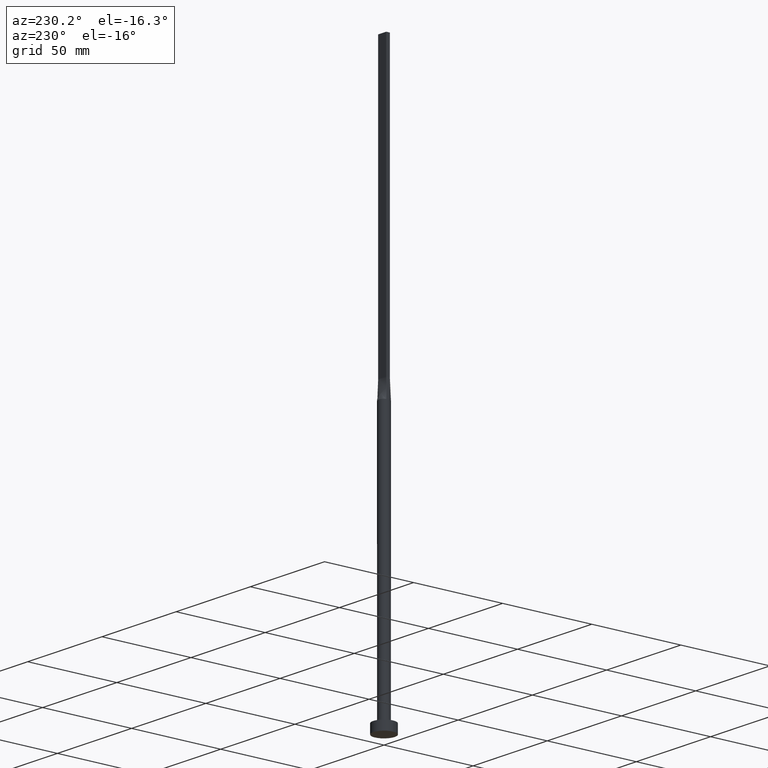
[diagram: clean part render]
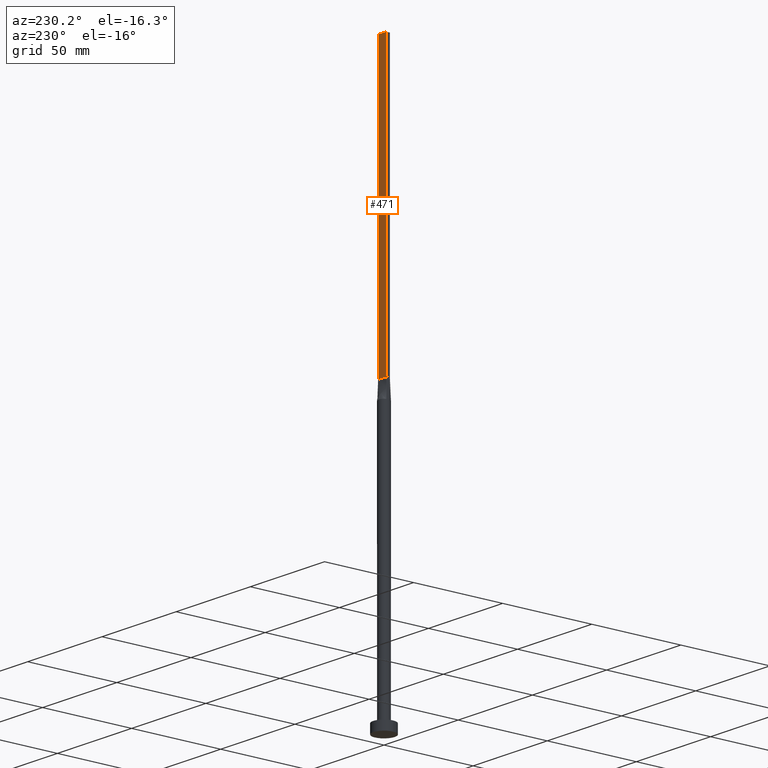
[diagram: same view with one face highlighted and labeled with its STEP entity id]
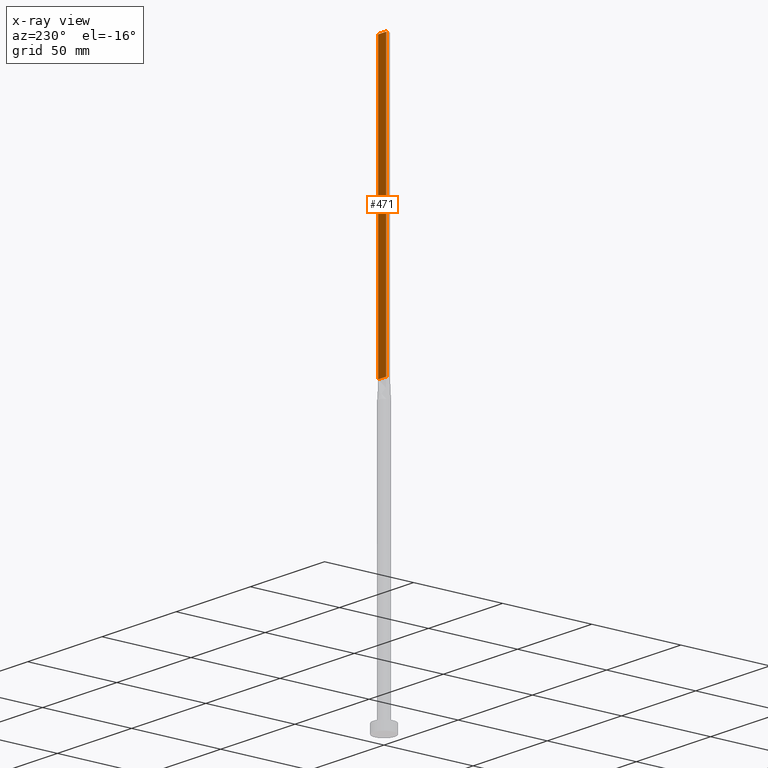
[diagram: x-ray of the same camera — body ghosted, the highlighted face saturated]
A machine part, auxiliary view. The second image highlights one B-rep face of the part: STEP entity #471.
The next image is the same camera in x-ray: the body ghosted, the highlighted face saturated — about 0% of this face is hidden behind the body in this view.
In plain terms, the highlighted planar face has unit normal (0, -1, 0).
Its self-contained STEP definition (entity closure, byte-faithful):
#9 = DIRECTION ( 'NONE',  ( -0.000000000000000000, -0.000000000000000000, -1.000000000000000000 ) ) ;
#18 = LINE ( 'NONE', #75, #393 ) ;
#22 = EDGE_CURVE ( 'NONE', #514, #558, #532, .T. ) ;
#40 = VERTEX_POINT ( 'NONE', #121 ) ;
#42 = FACE_OUTER_BOUND ( 'NONE', #145, .T. ) ;
#61 = LINE ( 'NONE', #384, #74 ) ;
#74 = VECTOR ( 'NONE', #105, 1000.000000000000000 ) ;
#75 = CARTESIAN_POINT ( 'NONE',  ( 2.749999999999999556, 1.000000000000000000, 315.0000000000000000 ) ) ;
#82 = PLANE ( 'NONE',  #369 ) ;
#84 = CARTESIAN_POINT ( 'NONE',  ( -2.749999999999999556, 1.000000000000000000, 315.0000000000000000 ) ) ;
#105 = DIRECTION ( 'NONE',  ( -1.000000000000000000, -0.000000000000000000, -0.000000000000000000 ) ) ;
#121 = CARTESIAN_POINT ( 'NONE',  ( 2.749999999999999556, 1.000000000000000000, 160.0000000000000000 ) ) ;
#127 = CARTESIAN_POINT ( 'NONE',  ( -2.749999999999999556, 1.000000000000000000, 315.0000000000000000 ) ) ;
#145 = EDGE_LOOP ( 'NONE', ( #292, #435, #328, #188 ) ) ;
#174 = LINE ( 'NONE', #459, #519 ) ;
#186 = EDGE_CURVE ( 'NONE', #40, #558, #61, .T. ) ;
#188 = ORIENTED_EDGE ( 'NONE', *, *, #381, .T. ) ;
#215 = CARTESIAN_POINT ( 'NONE',  ( 2.749999999999999556, 1.000000000000000000, 315.0000000000000000 ) ) ;
#216 = VECTOR ( 'NONE', #254, 1000.000000000000000 ) ;
#236 = VERTEX_POINT ( 'NONE', #280 ) ;
#254 = DIRECTION ( 'NONE',  ( -0.000000000000000000, -0.000000000000000000, -1.000000000000000000 ) ) ;
#260 = DIRECTION ( 'NONE',  ( 0.000000000000000000, -1.000000000000000000, 0.000000000000000000 ) ) ;
#280 = CARTESIAN_POINT ( 'NONE',  ( 2.749999999999999556, 1.000000000000000000, 315.0000000000000000 ) ) ;
#292 = ORIENTED_EDGE ( 'NONE', *, *, #186, .T. ) ;
#328 = ORIENTED_EDGE ( 'NONE', *, *, #338, .F. ) ;
#338 = EDGE_CURVE ( 'NONE', #236, #514, #18, .T. ) ;
#369 = AXIS2_PLACEMENT_3D ( 'NONE', #215, #260, #404 ) ;
#377 = DIRECTION ( 'NONE',  ( -1.000000000000000000, 0.000000000000000000, 0.000000000000000000 ) ) ;
#381 = EDGE_CURVE ( 'NONE', #236, #40, #174, .T. ) ;
#384 = CARTESIAN_POINT ( 'NONE',  ( -2.749999999999999556, 1.000000000000000000, 160.0000000000000000 ) ) ;
#393 = VECTOR ( 'NONE', #377, 1000.000000000000000 ) ;
#404 = DIRECTION ( 'NONE',  ( 0.000000000000000000, -0.000000000000000000, -1.000000000000000000 ) ) ;
#412 = CARTESIAN_POINT ( 'NONE',  ( -2.749999999999999556, 1.000000000000000000, 160.0000000000000000 ) ) ;
#435 = ORIENTED_EDGE ( 'NONE', *, *, #22, .F. ) ;
#459 = CARTESIAN_POINT ( 'NONE',  ( 2.749999999999999556, 1.000000000000000000, 315.0000000000000000 ) ) ;
#471 = ADVANCED_FACE ( 'NONE', ( #42 ), #82, .F. ) ;
#514 = VERTEX_POINT ( 'NONE', #127 ) ;
#519 = VECTOR ( 'NONE', #9, 1000.000000000000000 ) ;
#532 = LINE ( 'NONE', #84, #216 ) ;
#558 = VERTEX_POINT ( 'NONE', #412 ) ;